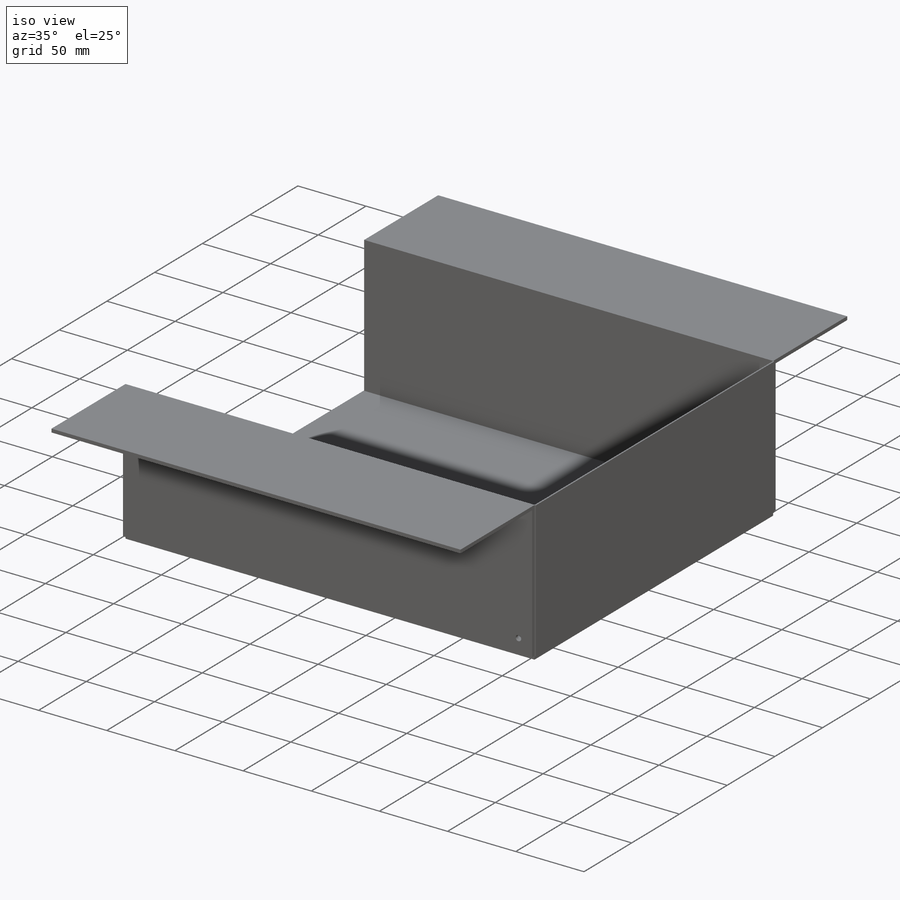
[diagram: iso view]
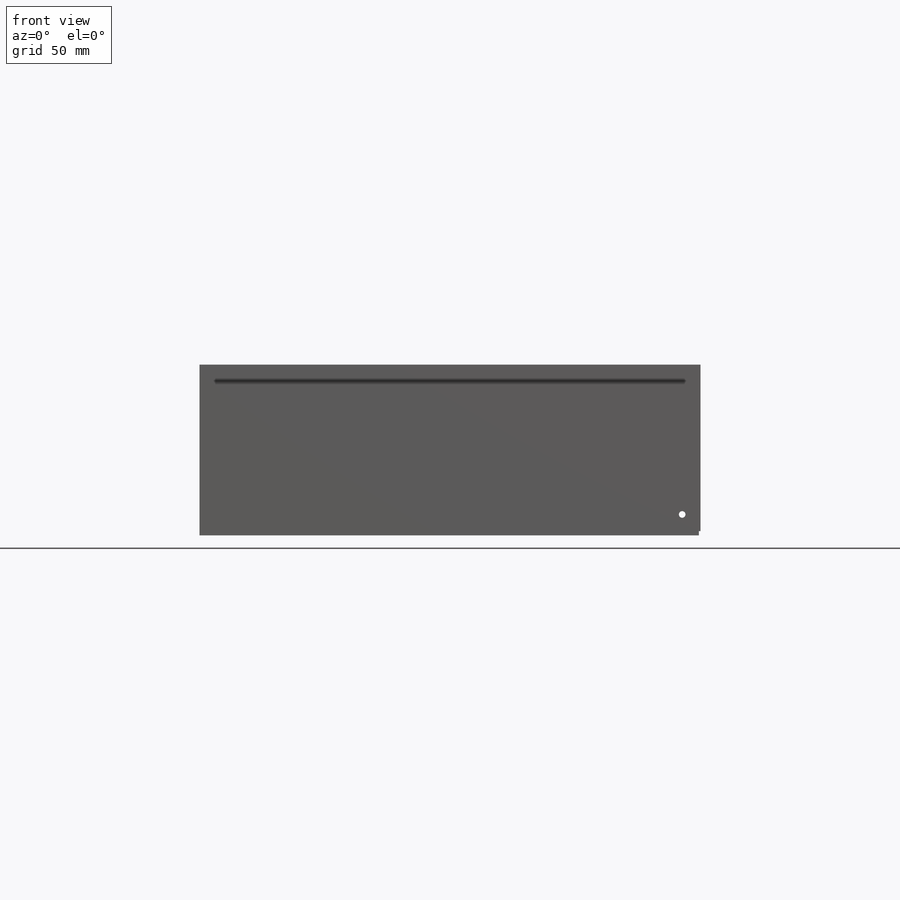
[diagram: front view]
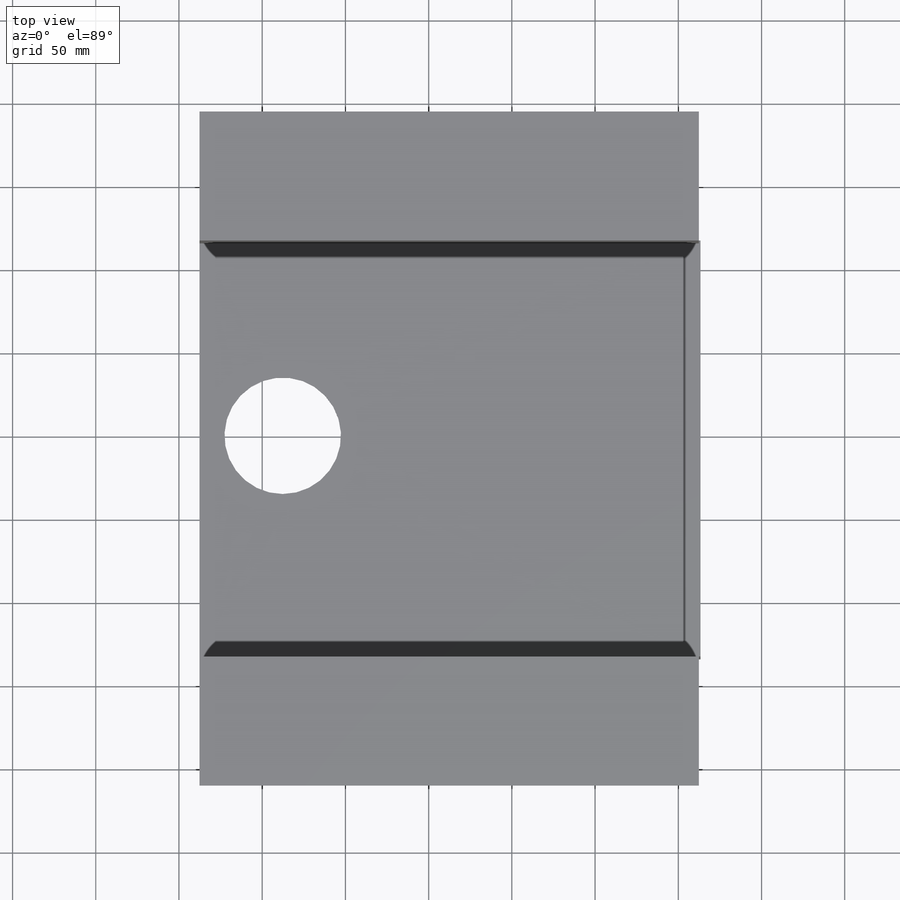
[diagram: top view]
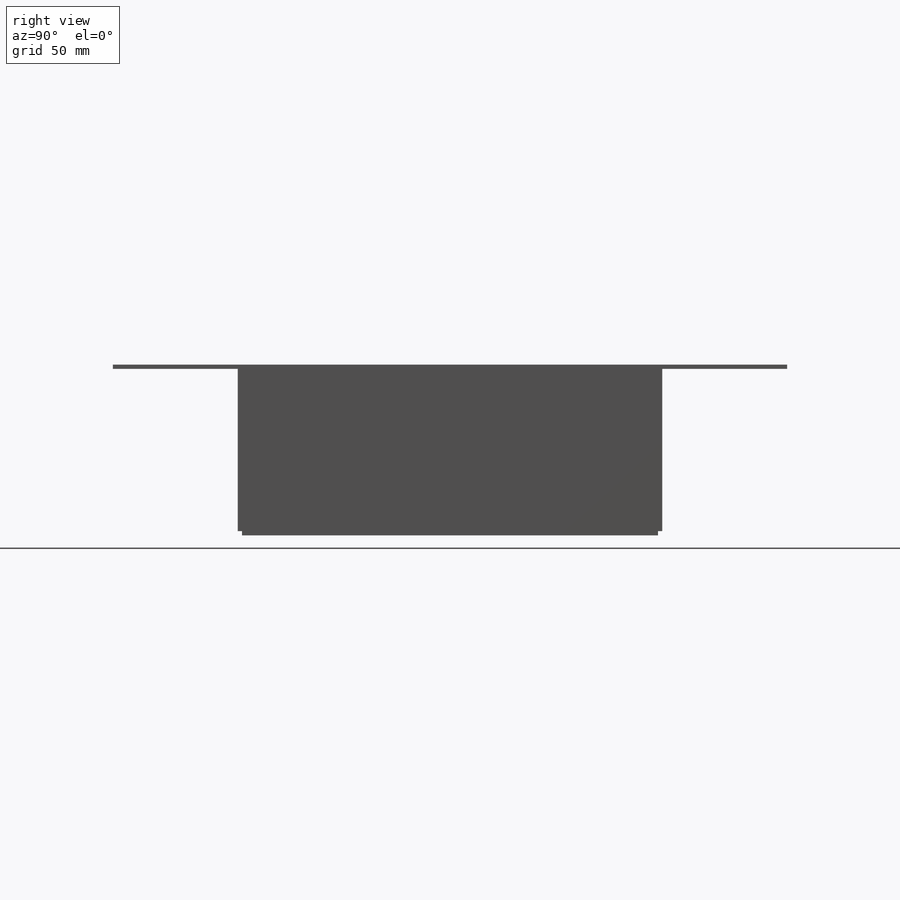
[diagram: right view]
SOLIDWORKS PART (.sldprt)
format: sldprt  version: not decoded by parser v0  size: 497,664 bytes
history: native  units: mm
features: sketch x7, extrude x4, cut_extrude x2, material x1 (+13 scaffold rows collapsed)
feature tree (27):
  scaffold x13  (default folders/planes/origin — collapsed)
  material  "Teak"
  sketch  "Sketch1"  dims[D1=250.0mm D2=300.0mm]
  extrude  "Boss-Extrude1"  Depth=2.54mm
  sketch  "Sketch2"  dims[D1=100.0mm D5=2.54mm D6=2.54mm D7=5.0mm]
  sketch  "Sketch3"
  extrude  "Extrude-Thin2"  Depth=75mm
  sketch  "Sketch4"
  extrude  "Extrude-Thin3"  Depth=75mm
  sketch  "Sketch5"  dims[c1.D1=~2.163645mm c1.D3=4.0mm c2.D1=10.0mm c2.D2=10.0mm]
  cut_extrude  "Cut-Extrude1"  [1 undecoded]
  sketch  "Sketch7"  dims[D1=0.0mm]
  extrude  "Boss-Extrude2"  Depth=1mm
  sketch  "Sketch8"  dims[D1=50.0mm]
  cut_extrude  "Cut-Extrude2"  [1 undecoded]
decode coverage: 9 of 13 modeling features carry decoded parameters
note: ~ marks probable driven/reference dimensions
note: 2 parameter values undecoded
note: suppression state not decoded; provenance and decode notes live in map.json
